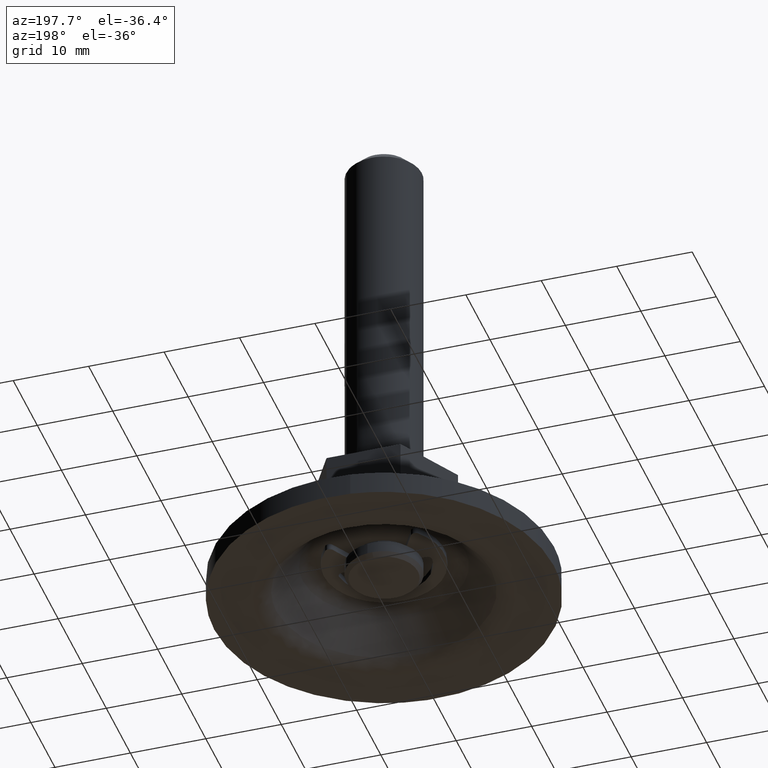
[diagram: clean part render]
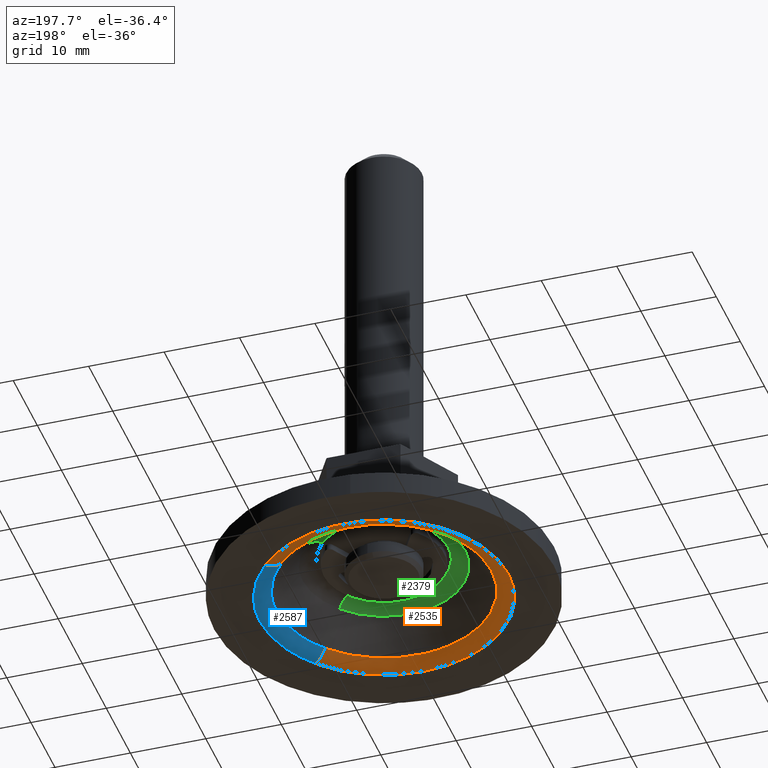
[diagram: same view with three faces highlighted in distinct colors, each labeled with its STEP entity id]
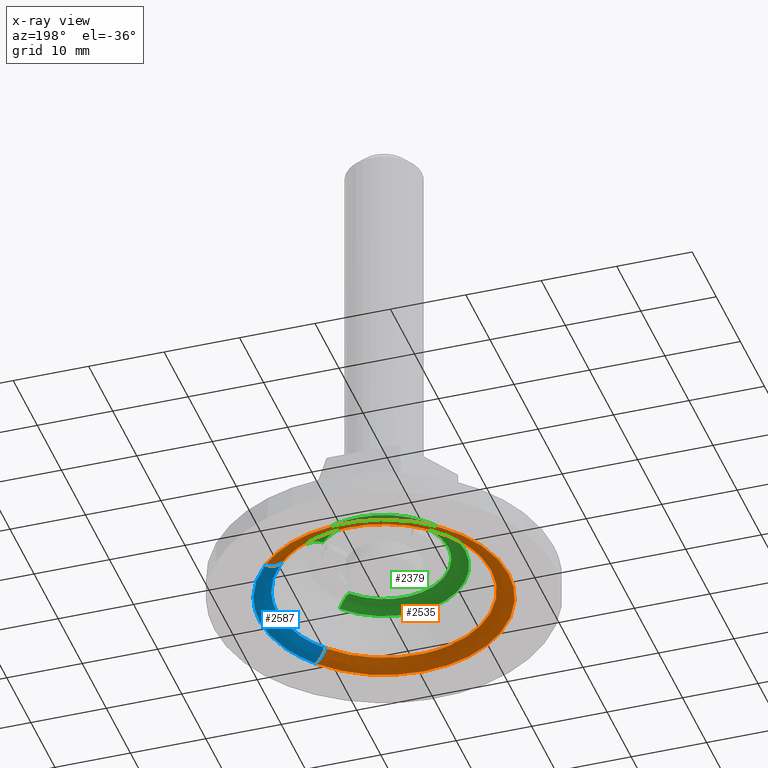
[diagram: x-ray of the same camera — body ghosted, the three highlighted faces saturated]
A machine part, auxiliary view with three faces highlighted in distinct colors.
The next image is the same camera in x-ray (body ghosted, the three faces saturated) — at least one of them is partly hidden behind the body in this view.
Their STEP definitions:

[orange] entity #2535 — the highlighted face is a freeform B-spline surface patch.
#1481=CARTESIAN_POINT('',(-11.384828201667361,-8.570191747119786,1.015686526095735));
#1482=VERTEX_POINT('',#1481);
#1488=CARTESIAN_POINT('',(-14.249999991714720,0.0,1.015686526096182));
#1489=VERTEX_POINT('',#1488);
#1490=CARTESIAN_POINT('',(-11.384828201667364,-8.570191747119786,1.015686526095735));
#1491=CARTESIAN_POINT('',(-14.249999991714724,-4.764035530268802,1.015686526096182));
#1492=CARTESIAN_POINT('',(-14.249999991714720,0.0,1.015686526096182));
#1500=(BOUNDED_CURVE()B_SPLINE_CURVE(2,(#1490,#1491,#1492),.UNSPECIFIED.,.F.,.U.)B_SPLINE_CURVE_WITH_KNOTS((3,3),(0.896177843277480,1.0),.UNSPECIFIED.)CURVE()GEOMETRIC_REPRESENTATION_ITEM()RATIONAL_B_SPLINE_CURVE((0.857757003872333,0.878364777333546,1.0))REPRESENTATION_ITEM(''));
#1501=EDGE_CURVE('',#1482,#1489,#1500,.T.);
#1503=CARTESIAN_POINT('',(10.509561916542481,9.623492510413414,1.015686525628553));
#1504=VERTEX_POINT('',#1503);
#1505=CARTESIAN_POINT('',(-14.249999991714720,0.0,1.015686526096182));
#1506=CARTESIAN_POINT('',(-14.249999991714716,14.249999991714716,1.015686526096182));
#1507=CARTESIAN_POINT('',(0.0,14.249999991714720,1.015686526096182));
#1508=CARTESIAN_POINT('',(6.273118908245605,14.249999991714716,1.015686526096182));
#1509=CARTESIAN_POINT('',(10.509561916542481,9.623492510413414,1.015686525628553));
#1517=(BOUNDED_CURVE()B_SPLINE_CURVE(2,(#1505,#1506,#1507,#1508,#1509),.UNSPECIFIED.,.F.,.U.)B_SPLINE_CURVE_WITH_KNOTS((3,2,3),(0.0,0.250000000000000,0.381637486163373),.UNSPECIFIED.)CURVE()GEOMETRIC_REPRESENTATION_ITEM()RATIONAL_B_SPLINE_CURVE((1.0,0.707106781186547,1.0,0.845777091844393,0.853966311196057))REPRESENTATION_ITEM(''));
#1518=EDGE_CURVE('',#1489,#1504,#1517,.T.);
#1535=CARTESIAN_POINT('',(10.772605583477411,-9.328101023986022,1.015686525818144));
#1536=VERTEX_POINT('',#1535);
#1550=CARTESIAN_POINT('',(-4.285057640502490,-13.590466540248380,1.015686526089415));
#1551=VERTEX_POINT('',#1550);
#1552=CARTESIAN_POINT('',(10.772605583477414,-9.328101023986022,1.015686525818144));
#1553=CARTESIAN_POINT('',(6.510686733057041,-14.249999991714722,1.015686526096182));
#1554=CARTESIAN_POINT('',(0.0,-14.249999991714720,1.015686526096182));
#1555=CARTESIAN_POINT('',(-2.193284773887662,-14.249999991714720,1.015686526096182));
#1556=CARTESIAN_POINT('',(-4.285057640502490,-13.590466540248380,1.015686526089415));
#1564=(BOUNDED_CURVE()B_SPLINE_CURVE(2,(#1552,#1553,#1554,#1555,#1556),.UNSPECIFIED.,.F.,.U.)B_SPLINE_CURVE_WITH_KNOTS((3,2,3),(0.614170618178202,0.750000000000000,0.801155712459433),.UNSPECIFIED.)CURVE()GEOMETRIC_REPRESENTATION_ITEM()RATIONAL_B_SPLINE_CURVE((0.854652565050874,0.840865980595088,1.0,0.940067354868245,0.904661887026836))REPRESENTATION_ITEM(''));
#1565=EDGE_CURVE('',#1536,#1551,#1564,.T.);
#1667=CARTESIAN_POINT('',(-4.285057640502490,-13.590466540248386,1.015686526089415));
#1668=CARTESIAN_POINT('',(-8.639133814774748,-12.217631595767630,1.015686526096182));
#1669=CARTESIAN_POINT('',(-11.384828201667364,-8.570191747119786,1.015686526095735));
#1677=(BOUNDED_CURVE()B_SPLINE_CURVE(2,(#1667,#1668,#1669),.UNSPECIFIED.,.F.,.U.)B_SPLINE_CURVE_WITH_KNOTS((3,3),(0.801155712459434,0.896177843277479),.UNSPECIFIED.)CURVE()GEOMETRIC_REPRESENTATION_ITEM()RATIONAL_B_SPLINE_CURVE((0.904661887026835,0.838895957179444,0.857757003872333))REPRESENTATION_ITEM(''));
#1678=EDGE_CURVE('',#1551,#1482,#1677,.T.);
#2432=CARTESIAN_POINT('',(12.566374103013642,-10.881344623547983,0.002514285256864));
#2433=CARTESIAN_POINT('',(11.936063809529070,-11.609261551366489,0.002514285256864));
#2434=CARTESIAN_POINT('',(11.225920965202834,-12.259531695636989,0.002514285256864));
#2435=CARTESIAN_POINT('',(-1.033610730434147,-23.485452660839830,0.002514285256864));
#2436=CARTESIAN_POINT('',(-12.259531695636989,-11.225920965202834,0.002514285256864));
#2437=CARTESIAN_POINT('',(-23.485452660839830,1.033610730434156,0.002514285256864));
#2438=CARTESIAN_POINT('',(-11.225920965202844,12.259531695636976,0.002514285256864));
#2439=CARTESIAN_POINT('',(1.033610730434155,23.485452660839830,0.002514285256864));
#2440=CARTESIAN_POINT('',(12.259531695636976,11.225920965202844,0.002514285256864));
#2441=CARTESIAN_POINT('',(11.429682972913440,-9.897072802913243,-0.059084391332368));
#2442=CARTESIAN_POINT('',(10.856387385018680,-10.559146018892648,-0.059084391332368));
#2443=CARTESIAN_POINT('',(10.210480498147842,-11.150595989650730,-0.059084391332368));
#2444=CARTESIAN_POINT('',(-0.940115491502885,-21.361076487798570,-0.059084391332368));
#2445=CARTESIAN_POINT('',(-11.150595989650730,-10.210480498147843,-0.059084391332368));
#2446=CARTESIAN_POINT('',(-21.361076487798570,0.940115491502894,-0.059084391332368));
#2447=CARTESIAN_POINT('',(-10.210480498147849,11.150595989650721,-0.059084391332368));
#2448=CARTESIAN_POINT('',(0.940115491502892,21.361076487798570,-0.059084391332368));
#2449=CARTESIAN_POINT('',(11.150595989650721,10.210480498147849,-0.059084391332368));
#2450=CARTESIAN_POINT('',(10.712707918835344,-9.276237183508936,1.109317099855579));
#2451=CARTESIAN_POINT('',(10.175374713808742,-9.896779065596101,1.109317099855579));
#2452=CARTESIAN_POINT('',(9.569985059676652,-10.451127843278776,1.109317099855578));
#2453=CARTESIAN_POINT('',(-0.881142783602123,-20.021112902955423,1.109317099855579));
#2454=CARTESIAN_POINT('',(-10.451127843278776,-9.569985059676652,1.109317099855578));
#2455=CARTESIAN_POINT('',(-20.021112902955423,0.881142783602131,1.109317099855579));
#2456=CARTESIAN_POINT('',(-9.569985059676659,10.451127843278771,1.109317099855578));
#2457=CARTESIAN_POINT('',(0.881142783602129,20.021112902955423,1.109317099855579));
#2458=CARTESIAN_POINT('',(10.451127843278771,9.569985059676659,1.109317099855578));
#2466=(BOUNDED_SURFACE()B_SPLINE_SURFACE(2,2,((#2432,#2441,#2450),(#2433,#2442,#2451),(#2434,#2443,#2452),(#2435,#2444,#2453),(#2436,#2445,#2454),(#2437,#2446,#2455),(#2438,#2447,#2456),(#2439,#2448,#2457),(#2440,#2449,#2458)),.UNSPECIFIED.,.F.,.F.,.U.)B_SPLINE_SURFACE_WITH_KNOTS((3,2,2,2,3),(3,3),(0.0,2.203322201311846,29.744875983382400,57.286429765452951,84.827983547523502),(0.0,2.841047824228498),.UNSPECIFIED.)GEOMETRIC_REPRESENTATION_ITEM()RATIONAL_B_SPLINE_SURFACE(((0.887796842890164,0.794122412708511,0.889071289594073),(0.906058138199712,0.810456897344873,0.907358799287917),(0.927797771523930,0.829902708855787,0.929129640206818),(0.656052095814338,0.586829833157012,0.656993869191658),(0.927797771523930,0.829902708855787,0.929129640206818),(0.656052095814338,0.586829833157012,0.656993869191658),(0.927797771523930,0.829902708855787,0.929129640206818),(0.656052095814338,0.586829833157012,0.656993869191658),(0.927797771523930,0.829902708855787,0.929129640206818)))REPRESENTATION_ITEM('')SURFACE());
#2467=ORIENTED_EDGE('',*,*,#1501,.F.);
#2468=ORIENTED_EDGE('',*,*,#1678,.F.);
#2469=ORIENTED_EDGE('',*,*,#1565,.F.);
#2470=CARTESIAN_POINT('',(12.473543313675830,-10.800959086037510,4.732797E-016));
#2471=VERTEX_POINT('',#2470);
#2472=CARTESIAN_POINT('',(12.473543313675835,-10.800959086037508,4.732797E-016));
#2473=CARTESIAN_POINT('',(11.449768782394225,-9.914463040135795,6.455765E-010));
#2474=CARTESIAN_POINT('',(10.772605583477414,-9.328101023986022,1.015686525818144));
#2482=(BOUNDED_CURVE()B_SPLINE_CURVE(2,(#2472,#2473,#2474),.UNSPECIFIED.,.F.,.U.)B_SPLINE_CURVE_WITH_KNOTS((3,3),(-1.576337679644763,-0.415032017718768),.UNSPECIFIED.)CURVE()GEOMETRIC_REPRESENTATION_ITEM()RATIONAL_B_SPLINE_CURVE((0.879677684789545,0.802299381875436,0.880836377332529))REPRESENTATION_ITEM(''));
#2483=EDGE_CURVE('',#2471,#1536,#2482,.T.);
#2484=ORIENTED_EDGE('',*,*,#2483,.F.);
#2485=CARTESIAN_POINT('',(-16.500000000000000,0.0,0.0));
#2486=VERTEX_POINT('',#2485);
#2487=CARTESIAN_POINT('',(12.473543313675828,-10.800959086037508,4.732797E-016));
#2488=CARTESIAN_POINT('',(7.538689905807013,-16.500000000000004,0.0));
#2489=CARTESIAN_POINT('',(0.0,-16.500000000000000,0.0));
#2490=CARTESIAN_POINT('',(-16.499999999999993,-16.499999999999993,0.0));
#2491=CARTESIAN_POINT('',(-16.500000000000000,0.0,0.0));
#2499=(BOUNDED_CURVE()B_SPLINE_CURVE(2,(#2487,#2488,#2489,#2490,#2491),.UNSPECIFIED.,.F.,.U.)B_SPLINE_CURVE_WITH_KNOTS((3,2,3),(0.614170618178363,0.750000000000000,1.0),.UNSPECIFIED.)CURVE()GEOMETRIC_REPRESENTATION_ITEM()RATIONAL_B_SPLINE_CURVE((0.854652565050842,0.840865980595277,1.0,0.707106781186548,1.0))REPRESENTATION_ITEM(''));
#2500=EDGE_CURVE('',#2471,#2486,#2499,.T.);
#2501=ORIENTED_EDGE('',*,*,#2500,.T.);
#2502=CARTESIAN_POINT('',(12.168966436383110,11.142991333973329,4.830665E-016));
#2503=VERTEX_POINT('',#2502);
#2504=CARTESIAN_POINT('',(-16.500000000000000,0.0,0.0));
#2505=CARTESIAN_POINT('',(-16.499999999999993,16.499999999999993,0.0));
#2506=CARTESIAN_POINT('',(0.0,16.500000000000000,0.0));
#2507=CARTESIAN_POINT('',(7.263611371675233,16.500000000000004,0.0));
#2508=CARTESIAN_POINT('',(12.168966436383108,11.142991333973328,4.830665E-016));
#2516=(BOUNDED_CURVE()B_SPLINE_CURVE(2,(#2504,#2505,#2506,#2507,#2508),.UNSPECIFIED.,.F.,.U.)B_SPLINE_CURVE_WITH_KNOTS((3,2,3),(0.0,0.250000000000000,0.381637486163522),.UNSPECIFIED.)CURVE()GEOMETRIC_REPRESENTATION_ITEM()RATIONAL_B_SPLINE_CURVE((1.0,0.707106781186548,1.0,0.845777091844219,0.853966311196076))REPRESENTATION_ITEM(''));
#2517=EDGE_CURVE('',#2486,#2503,#2516,.T.);
#2518=ORIENTED_EDGE('',*,*,#2517,.T.);
#2519=CARTESIAN_POINT('',(12.168966436383107,11.142991333973331,4.830665E-016));
#2520=CARTESIAN_POINT('',(11.170190259127134,10.228422759400063,3.219260E-011));
#2521=CARTESIAN_POINT('',(10.509561916542481,9.623492510413414,1.015686525628553));
#2529=(BOUNDED_CURVE()B_SPLINE_CURVE(2,(#2519,#2520,#2521),.UNSPECIFIED.,.F.,.U.)B_SPLINE_CURVE_WITH_KNOTS((3,3),(-1.576337680283557,-0.415032017956759),.UNSPECIFIED.)CURVE()GEOMETRIC_REPRESENTATION_ITEM()RATIONAL_B_SPLINE_CURVE((0.919312829553867,0.838448135672749,0.920523728535095))REPRESENTATION_ITEM(''));
#2530=EDGE_CURVE('',#2503,#1504,#2529,.T.);
#2531=ORIENTED_EDGE('',*,*,#2530,.T.);
#2532=ORIENTED_EDGE('',*,*,#1518,.F.);
#2533=EDGE_LOOP('',(#2467,#2468,#2469,#2484,#2501,#2518,#2531,#2532));
#2534=FACE_OUTER_BOUND('',#2533,.T.);
#2535=ADVANCED_FACE('',(#2534),#2466,.T.);

[blue] entity #2587 — the highlighted face is a freeform B-spline surface patch.
#1503=CARTESIAN_POINT('',(10.509561916542481,9.623492510413414,1.015686525628553));
#1504=VERTEX_POINT('',#1503);
#1520=CARTESIAN_POINT('',(14.249999991714720,0.0,1.015686526096182));
#1521=VERTEX_POINT('',#1520);
#1522=CARTESIAN_POINT('',(10.509561916542481,9.623492510413414,1.015686525628553));
#1523=CARTESIAN_POINT('',(14.249999991714727,5.538658910832690,1.015686526096182));
#1524=CARTESIAN_POINT('',(14.249999991714720,0.0,1.015686526096182));
#1532=(BOUNDED_CURVE()B_SPLINE_CURVE(2,(#1522,#1523,#1524),.UNSPECIFIED.,.F.,.U.)B_SPLINE_CURVE_WITH_KNOTS((3,3),(0.381637486163373,0.500000000000000),.UNSPECIFIED.)CURVE()GEOMETRIC_REPRESENTATION_ITEM()RATIONAL_B_SPLINE_CURVE((0.853966311196057,0.861329689342154,1.0))REPRESENTATION_ITEM(''));
#1533=EDGE_CURVE('',#1504,#1521,#1532,.T.);
#1535=CARTESIAN_POINT('',(10.772605583477411,-9.328101023986022,1.015686525818144));
#1536=VERTEX_POINT('',#1535);
#1537=CARTESIAN_POINT('',(14.249999991714720,0.0,1.015686526096182));
#1538=CARTESIAN_POINT('',(14.249999991714720,-5.312214154272510,1.015686526096182));
#1539=CARTESIAN_POINT('',(10.772605583477414,-9.328101023986022,1.015686525818144));
#1547=(BOUNDED_CURVE()B_SPLINE_CURVE(2,(#1537,#1538,#1539),.UNSPECIFIED.,.F.,.U.)B_SPLINE_CURVE_WITH_KNOTS((3,3),(0.500000000000000,0.614170618178202),.UNSPECIFIED.)CURVE()GEOMETRIC_REPRESENTATION_ITEM()RATIONAL_B_SPLINE_CURVE((1.0,0.866240800591459,0.854652565050874))REPRESENTATION_ITEM(''));
#1548=EDGE_CURVE('',#1521,#1536,#1547,.T.);
#2470=CARTESIAN_POINT('',(12.473543313675830,-10.800959086037510,4.732797E-016));
#2471=VERTEX_POINT('',#2470);
#2472=CARTESIAN_POINT('',(12.473543313675835,-10.800959086037508,4.732797E-016));
#2473=CARTESIAN_POINT('',(11.449768782394225,-9.914463040135795,6.455765E-010));
#2474=CARTESIAN_POINT('',(10.772605583477414,-9.328101023986022,1.015686525818144));
#2482=(BOUNDED_CURVE()B_SPLINE_CURVE(2,(#2472,#2473,#2474),.UNSPECIFIED.,.F.,.U.)B_SPLINE_CURVE_WITH_KNOTS((3,3),(-1.576337679644763,-0.415032017718768),.UNSPECIFIED.)CURVE()GEOMETRIC_REPRESENTATION_ITEM()RATIONAL_B_SPLINE_CURVE((0.879677684789545,0.802299381875436,0.880836377332529))REPRESENTATION_ITEM(''));
#2483=EDGE_CURVE('',#2471,#1536,#2482,.T.);
#2502=CARTESIAN_POINT('',(12.168966436383110,11.142991333973329,4.830665E-016));
#2503=VERTEX_POINT('',#2502);
#2519=CARTESIAN_POINT('',(12.168966436383107,11.142991333973331,4.830665E-016));
#2520=CARTESIAN_POINT('',(11.170190259127134,10.228422759400063,3.219260E-011));
#2521=CARTESIAN_POINT('',(10.509561916542481,9.623492510413414,1.015686525628553));
#2529=(BOUNDED_CURVE()B_SPLINE_CURVE(2,(#2519,#2520,#2521),.UNSPECIFIED.,.F.,.U.)B_SPLINE_CURVE_WITH_KNOTS((3,3),(-1.576337680283557,-0.415032017956759),.UNSPECIFIED.)CURVE()GEOMETRIC_REPRESENTATION_ITEM()RATIONAL_B_SPLINE_CURVE((0.919312829553867,0.838448135672749,0.920523728535095))REPRESENTATION_ITEM(''));
#2530=EDGE_CURVE('',#2503,#1504,#2529,.T.);
#2536=CARTESIAN_POINT('',(12.259531890033776,11.225921143209877,0.002514296055144));
#2537=CARTESIAN_POINT('',(22.256121502199882,0.308909739111550,0.002514296055144));
#2538=CARTESIAN_POINT('',(12.566375529227344,-10.881343379140187,0.002514296055144));
#2539=CARTESIAN_POINT('',(11.150596060606823,10.210480563121573,-0.059084519833350));
#2540=CARTESIAN_POINT('',(20.242944263521391,0.280967311877586,-0.059084519833351));
#2541=CARTESIAN_POINT('',(11.429684161612984,-9.897071577111939,-0.059084519833351));
#2542=CARTESIAN_POINT('',(10.451127837453793,9.569985054342778,1.109317109585710));
#2543=CARTESIAN_POINT('',(18.973120105383934,0.263342450808733,1.109317109585710));
#2544=CARTESIAN_POINT('',(10.712708958828298,-9.276235970402313,1.109317109585710));
#2552=(BOUNDED_SURFACE()B_SPLINE_SURFACE(2,2,((#2536,#2539,#2542),(#2537,#2540,#2543),(#2538,#2541,#2544)),.UNSPECIFIED.,.F.,.F.,.U.)B_SPLINE_SURFACE_WITH_KNOTS((3,3),(3,3),(0.0,25.310437340433879),(0.0,2.841048116065912),.UNSPECIFIED.)GEOMETRIC_REPRESENTATION_ITEM()RATIONAL_B_SPLINE_SURFACE(((0.927797790709278,0.829902698676245,0.929129641131953),(0.677791763886736,0.606275655776370,0.678764731548717),(0.887796826417671,0.794122371812265,0.889071255598635)))REPRESENTATION_ITEM('')SURFACE());
#2553=ORIENTED_EDGE('',*,*,#1548,.F.);
#2554=ORIENTED_EDGE('',*,*,#1533,.F.);
#2555=ORIENTED_EDGE('',*,*,#2530,.F.);
#2556=CARTESIAN_POINT('',(16.500000000000000,0.0,0.0));
#2557=VERTEX_POINT('',#2556);
#2558=CARTESIAN_POINT('',(12.168966436383108,11.142991333973328,4.830665E-016));
#2559=CARTESIAN_POINT('',(16.500000000000000,6.413184005736198,0.0));
#2560=CARTESIAN_POINT('',(16.500000000000000,0.0,0.0));
#2568=(BOUNDED_CURVE()B_SPLINE_CURVE(2,(#2558,#2559,#2560),.UNSPECIFIED.,.F.,.U.)B_SPLINE_CURVE_WITH_KNOTS((3,3),(0.381637486163522,0.500000000000000),.UNSPECIFIED.)CURVE()GEOMETRIC_REPRESENTATION_ITEM()RATIONAL_B_SPLINE_CURVE((0.853966311196076,0.861329689342329,1.0))REPRESENTATION_ITEM(''));
#2569=EDGE_CURVE('',#2503,#2557,#2568,.T.);
#2570=ORIENTED_EDGE('',*,*,#2569,.T.);
#2571=CARTESIAN_POINT('',(16.500000000000000,0.0,0.0));
#2572=CARTESIAN_POINT('',(16.499999999999996,-6.150984813796541,0.0));
#2573=CARTESIAN_POINT('',(12.473543313675826,-10.800959086037510,4.732797E-016));
#2581=(BOUNDED_CURVE()B_SPLINE_CURVE(2,(#2571,#2572,#2573),.UNSPECIFIED.,.F.,.U.)B_SPLINE_CURVE_WITH_KNOTS((3,3),(0.500000000000000,0.614170618178362),.UNSPECIFIED.)CURVE()GEOMETRIC_REPRESENTATION_ITEM()RATIONAL_B_SPLINE_CURVE((1.0,0.866240800591272,0.854652565050842))REPRESENTATION_ITEM(''));
#2582=EDGE_CURVE('',#2557,#2471,#2581,.T.);
#2583=ORIENTED_EDGE('',*,*,#2582,.T.);
#2584=ORIENTED_EDGE('',*,*,#2483,.T.);
#2585=EDGE_LOOP('',(#2553,#2554,#2555,#2570,#2583,#2584));
#2586=FACE_OUTER_BOUND('',#2585,.T.);
#2587=ADVANCED_FACE('',(#2586),#2552,.T.);

[green] entity #2379 — the highlighted face is a freeform B-spline surface patch.
#1464=CARTESIAN_POINT('',(-8.588554606651925,-6.465232369406971,4.984313526096006));
#1465=VERTEX_POINT('',#1464);
#1466=CARTESIAN_POINT('',(-10.749999991714720,0.0,4.984313526096170));
#1467=VERTEX_POINT('',#1466);
#1468=CARTESIAN_POINT('',(-8.588554606651925,-6.465232369406971,4.984313526096006));
#1469=CARTESIAN_POINT('',(-10.749999991714720,-3.593921539693302,4.984313526096169));
#1470=CARTESIAN_POINT('',(-10.749999991714720,0.0,4.984313526096170));
#1478=(BOUNDED_CURVE()B_SPLINE_CURVE(2,(#1468,#1469,#1470),.UNSPECIFIED.,.F.,.U.)B_SPLINE_CURVE_WITH_KNOTS((3,3),(0.896177843277597,1.0),.UNSPECIFIED.)CURVE()GEOMETRIC_REPRESENTATION_ITEM()RATIONAL_B_SPLINE_CURVE((0.857757003872379,0.878364777333682,1.0))REPRESENTATION_ITEM(''));
#1479=EDGE_CURVE('',#1465,#1467,#1478,.T.);
#1567=CARTESIAN_POINT('',(-3.232587342264045,-10.252457212624140,4.984313526086256));
#1568=VERTEX_POINT('',#1567);
#1574=CARTESIAN_POINT('',(8.126702449613671,-7.036988484775702,4.984313519016563));
#1575=VERTEX_POINT('',#1574);
#1576=CARTESIAN_POINT('',(8.126702449613671,-7.036988484775702,4.984313519016563));
#1577=CARTESIAN_POINT('',(4.911570692421424,-10.749999991714720,4.984313526096170));
#1578=CARTESIAN_POINT('',(0.0,-10.749999991714720,4.984313526096170));
#1579=CARTESIAN_POINT('',(-1.654583250205840,-10.749999991714716,4.984313526096169));
#1580=CARTESIAN_POINT('',(-3.232587342264044,-10.252457212624144,4.984313526086256));
#1588=(BOUNDED_CURVE()B_SPLINE_CURVE(2,(#1576,#1577,#1578,#1579,#1580),.UNSPECIFIED.,.F.,.U.)B_SPLINE_CURVE_WITH_KNOTS((3,2,3),(0.614170618178379,0.750000000000000,0.801155712460665),.UNSPECIFIED.)CURVE()GEOMETRIC_REPRESENTATION_ITEM()RATIONAL_B_SPLINE_CURVE((0.854652565050838,0.840865980595296,1.0,0.940067354866801,0.904661887025131))REPRESENTATION_ITEM(''));
#1589=EDGE_CURVE('',#1575,#1568,#1588,.T.);
#1606=CARTESIAN_POINT('',(7.928265999346568,7.259827676083184,4.984313518837484));
#1607=VERTEX_POINT('',#1606);
#1621=CARTESIAN_POINT('',(-10.749999991714720,0.0,4.984313526096170));
#1622=CARTESIAN_POINT('',(-10.749999991714720,10.749999991714720,4.984313526096169));
#1623=CARTESIAN_POINT('',(0.0,10.749999991714720,4.984313526096170));
#1624=CARTESIAN_POINT('',(4.732352859714869,10.749999991714720,4.984313526096170));
#1625=CARTESIAN_POINT('',(7.928265999346568,7.259827676083184,4.984313518837484));
#1633=(BOUNDED_CURVE()B_SPLINE_CURVE(2,(#1621,#1622,#1623,#1624,#1625),.UNSPECIFIED.,.F.,.U.)B_SPLINE_CURVE_WITH_KNOTS((3,2,3),(0.0,0.250000000000000,0.381637486163476),.UNSPECIFIED.)CURVE()GEOMETRIC_REPRESENTATION_ITEM()RATIONAL_B_SPLINE_CURVE((1.0,0.707106781186548,1.0,0.845777091844273,0.853966311196070))REPRESENTATION_ITEM(''));
#1634=EDGE_CURVE('',#1467,#1607,#1633,.T.);
#1653=CARTESIAN_POINT('',(-3.232587342264045,-10.252457212624144,4.984313526086256));
#1654=CARTESIAN_POINT('',(-6.517241297663270,-9.216809798533332,4.984313526096170));
#1655=CARTESIAN_POINT('',(-8.588554606651925,-6.465232369406971,4.984313526096006));
#1663=(BOUNDED_CURVE()B_SPLINE_CURVE(2,(#1653,#1654,#1655),.UNSPECIFIED.,.F.,.U.)B_SPLINE_CURVE_WITH_KNOTS((3,3),(0.801155712460666,0.896177843277596),.UNSPECIFIED.)CURVE()GEOMETRIC_REPRESENTATION_ITEM()RATIONAL_B_SPLINE_CURVE((0.904661887025130,0.838895957179607,0.857757003872379))REPRESENTATION_ITEM(''));
#1664=EDGE_CURVE('',#1568,#1465,#1663,.T.);
#2276=CARTESIAN_POINT('',(6.332932115411766,-5.483747042737184,5.997485715385278));
#2277=CARTESIAN_POINT('',(6.015281831601913,-5.850587027902683,5.997485715385277));
#2278=CARTESIAN_POINT('',(5.657399248408331,-6.178296249877580,5.997485715385279));
#2279=CARTESIAN_POINT('',(-0.520897001469249,-11.835695498285910,5.997485715385277));
#2280=CARTESIAN_POINT('',(-6.178296249877580,-5.657399248408332,5.997485715385279));
#2281=CARTESIAN_POINT('',(-11.835695498285910,0.520897001469253,5.997485715385277));
#2282=CARTESIAN_POINT('',(-5.657399248408335,6.178296249877578,5.997485715385279));
#2283=CARTESIAN_POINT('',(0.520897001469253,11.835695498285910,5.997485715385277));
#2284=CARTESIAN_POINT('',(6.178296249877578,5.657399248408337,5.997485715385279));
#2285=CARTESIAN_POINT('',(7.469623082686859,-6.468018722380093,6.059084375274852));
#2286=CARTESIAN_POINT('',(7.094958101454254,-6.900702409952915,6.059084375274851));
#2287=CARTESIAN_POINT('',(6.672839570006746,-7.287231797014550,6.059084375274852));
#2288=CARTESIAN_POINT('',(-0.614392227007803,-13.960071367021294,6.059084375274852));
#2289=CARTESIAN_POINT('',(-7.287231797014550,-6.672839570006747,6.059084375274852));
#2290=CARTESIAN_POINT('',(-13.960071367021294,0.614392227007808,6.059084375274852));
#2291=CARTESIAN_POINT('',(-6.672839570006751,7.287231797014546,6.059084375274852));
#2292=CARTESIAN_POINT('',(0.614392227007807,13.960071367021294,6.059084375274852));
#2293=CARTESIAN_POINT('',(7.287231797014544,6.672839570006753,6.059084375274852));
#2294=CARTESIAN_POINT('',(8.186598130858251,-7.088854336669727,4.890683155803862));
#2295=CARTESIAN_POINT('',(7.775970767053759,-7.563069357792639,4.890683155803862));
#2296=CARTESIAN_POINT('',(7.313335003201300,-7.986699937624027,4.890683155803862));
#2297=CARTESIAN_POINT('',(-0.673364934422726,-15.300034940825327,4.890683155803862));
#2298=CARTESIAN_POINT('',(-7.986699937624027,-7.313335003201300,4.890683155803862));
#2299=CARTESIAN_POINT('',(-15.300034940825327,0.673364934422732,4.890683155803862));
#2300=CARTESIAN_POINT('',(-7.313335003201304,7.986699937624021,4.890683155803862));
#2301=CARTESIAN_POINT('',(0.673364934422731,15.300034940825327,4.890683155803862));
#2302=CARTESIAN_POINT('',(7.986699937624021,7.313335003201305,4.890683155803862));
#2310=(BOUNDED_SURFACE()B_SPLINE_SURFACE(2,2,((#2276,#2285,#2294),(#2277,#2286,#2295),(#2278,#2287,#2296),(#2279,#2288,#2297),(#2280,#2289,#2298),(#2281,#2290,#2299),(#2282,#2291,#2300),(#2283,#2292,#2301),(#2284,#2293,#2302)),.UNSPECIFIED.,.F.,.F.,.U.)B_SPLINE_SURFACE_WITH_KNOTS((3,2,2,2,3),(3,3),(0.0,1.435395227539206,19.377852683040128,37.320310138541053,55.262767594041968),(0.0,2.841047459933812),.UNSPECIFIED.)GEOMETRIC_REPRESENTATION_ITEM()RATIONAL_B_SPLINE_SURFACE(((0.887796841798455,0.794122424735662,0.889071266334129),(0.906058137085548,0.810456909619414,0.907358775549534),(0.927797770383032,0.829902721424838,0.929129615898865),(0.656052095007602,0.586829842044673,0.656993852003340),(0.927797770383032,0.829902721424838,0.929129615898865),(0.656052095007602,0.586829842044673,0.656993852003340),(0.927797770383032,0.829902721424838,0.929129615898865),(0.656052095007602,0.586829842044673,0.656993852003340),(0.927797770383032,0.829902721424838,0.929129615898865)))REPRESENTATION_ITEM('')SURFACE());
#2311=ORIENTED_EDGE('',*,*,#1479,.T.);
#2312=ORIENTED_EDGE('',*,*,#1634,.T.);
#2313=CARTESIAN_POINT('',(6.268861498218852,5.740328869668703,6.0));
#2314=VERTEX_POINT('',#2313);
#2315=CARTESIAN_POINT('',(6.268861498218852,5.740328869668702,6.0));
#2316=CARTESIAN_POINT('',(7.267637653607097,6.654897424194505,5.999999999160753));
#2317=CARTESIAN_POINT('',(7.928265999346569,7.259827676083185,4.984313518837484));
#2325=(BOUNDED_CURVE()B_SPLINE_CURVE(2,(#2315,#2316,#2317),.UNSPECIFIED.,.F.,.U.)B_SPLINE_CURVE_WITH_KNOTS((3,3),(-1.576337679443070,-0.415032041016348),.UNSPECIFIED.)CURVE()GEOMETRIC_REPRESENTATION_ITEM()RATIONAL_B_SPLINE_CURVE((0.919312829436816,0.838448137337850,0.920523725275609))REPRESENTATION_ITEM(''));
#2326=EDGE_CURVE('',#2314,#1607,#2325,.T.);
#2327=ORIENTED_EDGE('',*,*,#2326,.F.);
#2328=CARTESIAN_POINT('',(-8.500000000000000,0.0,6.0));
#2329=VERTEX_POINT('',#2328);
#2330=CARTESIAN_POINT('',(-8.500000000000000,0.0,6.0));
#2331=CARTESIAN_POINT('',(-8.500000000000002,8.500000000000002,6.0));
#2332=CARTESIAN_POINT('',(0.0,8.500000000000000,6.0));
#2333=CARTESIAN_POINT('',(3.741860403570907,8.500000000000000,6.000000000000001));
#2334=CARTESIAN_POINT('',(6.268861498218852,5.740328869668703,6.0));
#2342=(BOUNDED_CURVE()B_SPLINE_CURVE(2,(#2330,#2331,#2332,#2333,#2334),.UNSPECIFIED.,.F.,.U.)B_SPLINE_CURVE_WITH_KNOTS((3,2,3),(0.0,0.250000000000000,0.381637486162946),.UNSPECIFIED.)CURVE()GEOMETRIC_REPRESENTATION_ITEM()RATIONAL_B_SPLINE_CURVE((1.0,0.707106781186548,1.0,0.845777091844894,0.853966311196004))REPRESENTATION_ITEM(''));
#2343=EDGE_CURVE('',#2329,#2314,#2342,.T.);
#2344=ORIENTED_EDGE('',*,*,#2343,.F.);
#2345=CARTESIAN_POINT('',(6.425764738071799,-5.564130438904321,6.0));
#2346=VERTEX_POINT('',#2345);
#2347=CARTESIAN_POINT('',(6.425764738071799,-5.564130438904321,6.0));
#2348=CARTESIAN_POINT('',(3.883567527219330,-8.500000000000000,5.999999999999999));
#2349=CARTESIAN_POINT('',(0.0,-8.500000000000000,6.0));
#2350=CARTESIAN_POINT('',(-8.500000000000002,-8.500000000000002,6.0));
#2351=CARTESIAN_POINT('',(-8.500000000000000,0.0,6.0));
#2359=(BOUNDED_CURVE()B_SPLINE_CURVE(2,(#2347,#2348,#2349,#2350,#2351),.UNSPECIFIED.,.F.,.U.)B_SPLINE_CURVE_WITH_KNOTS((3,2,3),(0.614170618178792,0.750000000000000,1.0),.UNSPECIFIED.)CURVE()GEOMETRIC_REPRESENTATION_ITEM()RATIONAL_B_SPLINE_CURVE((0.854652565050754,0.840865980595779,1.0,0.707106781186548,1.0))REPRESENTATION_ITEM(''));
#2360=EDGE_CURVE('',#2346,#2329,#2359,.T.);
#2361=ORIENTED_EDGE('',*,*,#2360,.F.);
#2362=CARTESIAN_POINT('',(6.425764738071799,-5.564130438904321,6.0));
#2363=CARTESIAN_POINT('',(7.449539246659364,-6.450626465105009,5.999999999458908));
#2364=CARTESIAN_POINT('',(8.126702449613671,-7.036988484775702,4.984313519016563));
#2372=(BOUNDED_CURVE()B_SPLINE_CURVE(2,(#2362,#2363,#2364),.UNSPECIFIED.,.F.,.U.)B_SPLINE_CURVE_WITH_KNOTS((3,3),(-1.576337679753576,-0.415032041241144),.UNSPECIFIED.)CURVE()GEOMETRIC_REPRESENTATION_ITEM()RATIONAL_B_SPLINE_CURVE((0.879677684804046,0.802299383435383,0.880836374150978))REPRESENTATION_ITEM(''));
#2373=EDGE_CURVE('',#2346,#1575,#2372,.T.);
#2374=ORIENTED_EDGE('',*,*,#2373,.T.);
#2375=ORIENTED_EDGE('',*,*,#1589,.T.);
#2376=ORIENTED_EDGE('',*,*,#1664,.T.);
#2377=EDGE_LOOP('',(#2311,#2312,#2327,#2344,#2361,#2374,#2375,#2376));
#2378=FACE_OUTER_BOUND('',#2377,.T.);
#2379=ADVANCED_FACE('',(#2378),#2310,.F.);